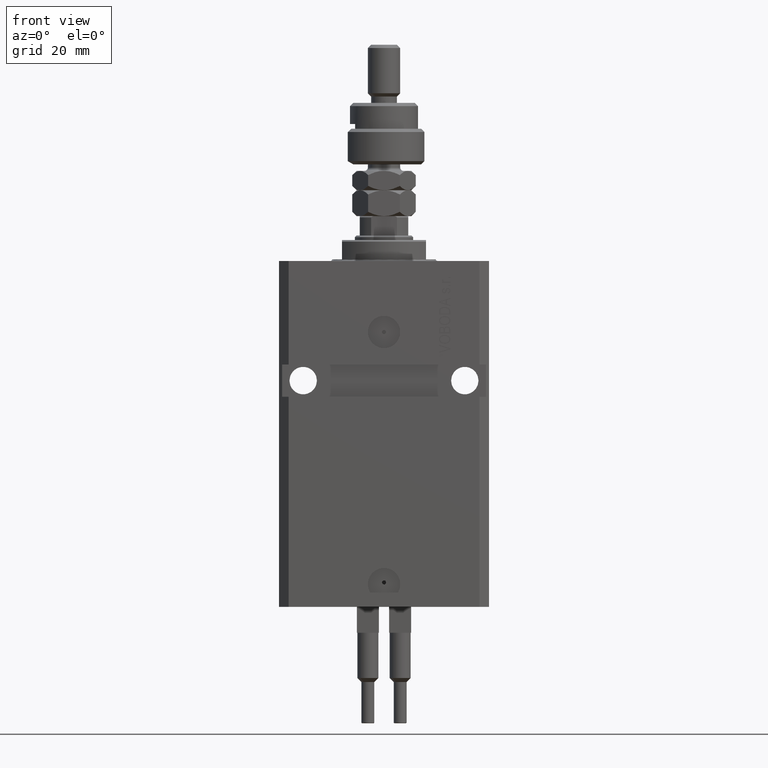
[diagram: clean part render]
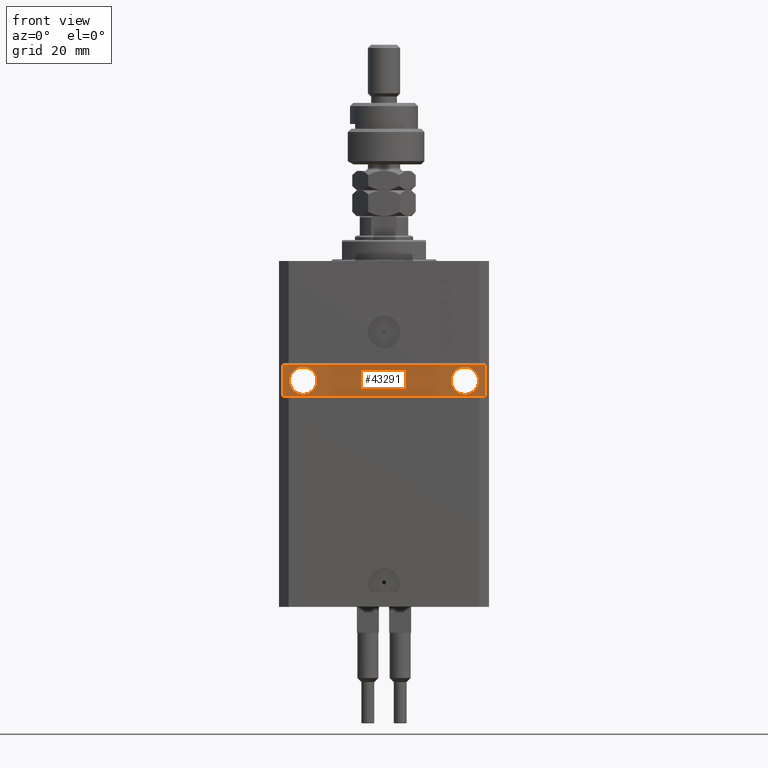
[diagram: same view with one face highlighted and labeled with its STEP entity id]
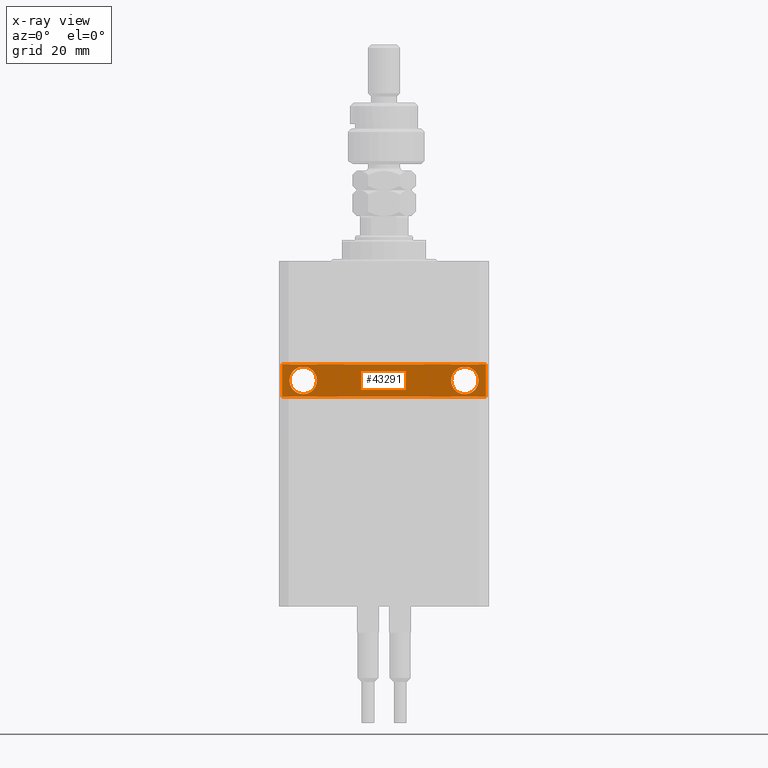
[diagram: x-ray of the same camera — body ghosted, the highlighted face saturated]
A machine part, front view. The second image highlights one B-rep face of the part: STEP entity #43291.
The next image is the same camera in x-ray: the body ghosted, the highlighted face saturated — about 0% of this face is hidden behind the body in this view.
In plain terms, the highlighted planar face has unit normal (0, -1, 0).
Its self-contained STEP definition (entity closure, byte-faithful):
#557 = AXIS2_PLACEMENT_3D ( 'NONE', #17283, #32473, #13202 ) ;
#1029 = VERTEX_POINT ( 'NONE', #38025 ) ;
#1681 = EDGE_CURVE ( 'NONE', #12323, #43668, #42217, .T. ) ;
#1772 = CIRCLE ( 'NONE', #9973, 4.249999999989050536 ) ;
#1875 = LINE ( 'NONE', #2128, #10893 ) ;
#1906 = ORIENTED_EDGE ( 'NONE', *, *, #36547, .F. ) ;
#2128 = CARTESIAN_POINT ( 'NONE',  ( -31.49999999999650413, -20.49999999999950262, -107.0000000000000000 ) ) ;
#2942 = CARTESIAN_POINT ( 'NONE',  ( 32.49999999999650413, -20.49999999999949196, -32.00000000000000711 ) ) ;
#3725 = FACE_BOUND ( 'NONE', #17340, .T. ) ;
#6496 = DIRECTION ( 'NONE',  ( 1.000000000000000000, 1.067522139062765303E-16, 1.067522139062765303E-16 ) ) ;
#7583 = EDGE_LOOP ( 'NONE', ( #34554, #1906, #36125, #18405 ) ) ;
#7700 = VERTEX_POINT ( 'NONE', #29440 ) ;
#7824 = CARTESIAN_POINT ( 'NONE',  ( 2.166708070385810581E-15, -20.49999999999949907, 0.000000000000000000 ) ) ;
#8297 = CIRCLE ( 'NONE', #19764, 4.249999999993782751 ) ;
#8837 = ORIENTED_EDGE ( 'NONE', *, *, #34504, .F. ) ;
#9489 = AXIS2_PLACEMENT_3D ( 'NONE', #7824, #20393, #39680 ) ;
#9640 = VERTEX_POINT ( 'NONE', #26632 ) ;
#9973 = AXIS2_PLACEMENT_3D ( 'NONE', #10404, #26059, #41753 ) ;
#10254 = DIRECTION ( 'NONE',  ( 1.101411730780568590E-16, -1.000000000000000000, 0.000000000000000000 ) ) ;
#10404 = CARTESIAN_POINT ( 'NONE',  ( 25.00000000000000711, -20.49999999999949551, -36.99999999999999289 ) ) ;
#10641 = LINE ( 'NONE', #2942, #27063 ) ;
#10753 = EDGE_CURVE ( 'NONE', #14495, #48345, #10641, .T. ) ;
#10893 = VECTOR ( 'NONE', #45529, 1000.000000000000000 ) ;
#11679 = FACE_BOUND ( 'NONE', #30541, .T. ) ;
#12323 = VERTEX_POINT ( 'NONE', #32812 ) ;
#12695 = PLANE ( 'NONE',  #9489 ) ;
#12834 = CIRCLE ( 'NONE', #557, 4.249999999989050536 ) ;
#13202 = DIRECTION ( 'NONE',  ( 1.000000000000000000, 0.000000000000000000, 0.000000000000000000 ) ) ;
#14495 = VERTEX_POINT ( 'NONE', #42672 ) ;
#15133 = VECTOR ( 'NONE', #21229, 1000.000000000000000 ) ;
#15762 = FACE_OUTER_BOUND ( 'NONE', #7583, .T. ) ;
#15868 = EDGE_CURVE ( 'NONE', #7700, #40795, #8297, .T. ) ;
#17283 = CARTESIAN_POINT ( 'NONE',  ( 25.00000000000000711, -20.49999999999949551, -36.99999999999999289 ) ) ;
#17340 = EDGE_LOOP ( 'NONE', ( #49167, #27313 ) ) ;
#18405 = ORIENTED_EDGE ( 'NONE', *, *, #50829, .F. ) ;
#19764 = AXIS2_PLACEMENT_3D ( 'NONE', #34628, #10254, #50320 ) ;
#20393 = DIRECTION ( 'NONE',  ( 1.067522139062765303E-16, -1.000000000000000000, 0.000000000000000000 ) ) ;
#20799 = DIRECTION ( 'NONE',  ( 1.101411730780568590E-16, -1.000000000000000000, 0.000000000000000000 ) ) ;
#21229 = DIRECTION ( 'NONE',  ( 0.000000000000000000, 0.000000000000000000, -1.000000000000000000 ) ) ;
#22069 = AXIS2_PLACEMENT_3D ( 'NONE', #48311, #20799, #24655 ) ;
#24655 = DIRECTION ( 'NONE',  ( 1.000000000000000000, 0.000000000000000000, 0.000000000000000000 ) ) ;
#26059 = DIRECTION ( 'NONE',  ( 1.394545208792185644E-16, -1.000000000000000000, 1.232595164407830946E-32 ) ) ;
#26455 = EDGE_CURVE ( 'NONE', #40795, #7700, #40976, .T. ) ;
#26632 = CARTESIAN_POINT ( 'NONE',  ( 29.24999999998905764, -20.49999999999949551, -36.99999999999999289 ) ) ;
#27063 = VECTOR ( 'NONE', #41987, 1000.000000000000000 ) ;
#27313 = ORIENTED_EDGE ( 'NONE', *, *, #15868, .F. ) ;
#29440 = CARTESIAN_POINT ( 'NONE',  ( -29.24999999999377920, -20.49999999999950262, -37.00000000000000000 ) ) ;
#30541 = EDGE_LOOP ( 'NONE', ( #8837, #37657 ) ) ;
#31765 = VECTOR ( 'NONE', #6496, 1000.000000000000000 ) ;
#32285 = CARTESIAN_POINT ( 'NONE',  ( 31.49999999999651124, -20.49999999999949551, -107.0000000000000000 ) ) ;
#32473 = DIRECTION ( 'NONE',  ( 1.394545208792185644E-16, -1.000000000000000000, 1.232595164407830946E-32 ) ) ;
#32812 = CARTESIAN_POINT ( 'NONE',  ( -31.49999999999650413, -20.49999999999949907, -41.99999999999999289 ) ) ;
#34272 = CARTESIAN_POINT ( 'NONE',  ( -20.75000000000621014, -20.49999999999950262, -37.00000000000000000 ) ) ;
#34504 = EDGE_CURVE ( 'NONE', #9640, #1029, #1772, .T. ) ;
#34554 = ORIENTED_EDGE ( 'NONE', *, *, #10753, .T. ) ;
#34628 = CARTESIAN_POINT ( 'NONE',  ( -24.99999999999999289, -20.49999999999950262, -37.00000000000000000 ) ) ;
#36125 = ORIENTED_EDGE ( 'NONE', *, *, #1681, .T. ) ;
#36547 = EDGE_CURVE ( 'NONE', #12323, #48345, #1875, .T. ) ;
#37657 = ORIENTED_EDGE ( 'NONE', *, *, #44388, .F. ) ;
#38025 = CARTESIAN_POINT ( 'NONE',  ( 20.75000000001095657, -20.49999999999949551, -36.99999999999999289 ) ) ;
#39680 = DIRECTION ( 'NONE',  ( 1.000000000000000000, 1.067522139062765303E-16, 0.000000000000000000 ) ) ;
#40795 = VERTEX_POINT ( 'NONE', #34272 ) ;
#40976 = CIRCLE ( 'NONE', #22069, 4.249999999993782751 ) ;
#41753 = DIRECTION ( 'NONE',  ( 1.000000000000000000, 0.000000000000000000, 0.000000000000000000 ) ) ;
#41987 = DIRECTION ( 'NONE',  ( -1.000000000000000000, -1.067522139062765303E-16, 1.067522139062765303E-16 ) ) ;
#42217 = LINE ( 'NONE', #49158, #31765 ) ;
#42672 = CARTESIAN_POINT ( 'NONE',  ( 31.49999999999651124, -20.49999999999949196, -32.00000000000000711 ) ) ;
#43291 = ADVANCED_FACE ( 'NONE', ( #11679, #3725, #15762 ), #12695, .T. ) ;
#43480 = CARTESIAN_POINT ( 'NONE',  ( 31.49999999999650413, -20.49999999999949196, -41.99999999999998579 ) ) ;
#43668 = VERTEX_POINT ( 'NONE', #43480 ) ;
#43785 = CARTESIAN_POINT ( 'NONE',  ( -31.49999999999650413, -20.49999999999950262, -32.00000000000000000 ) ) ;
#44388 = EDGE_CURVE ( 'NONE', #1029, #9640, #12834, .T. ) ;
#44631 = LINE ( 'NONE', #32285, #15133 ) ;
#45529 = DIRECTION ( 'NONE',  ( 0.000000000000000000, 0.000000000000000000, 1.000000000000000000 ) ) ;
#48311 = CARTESIAN_POINT ( 'NONE',  ( -24.99999999999999289, -20.49999999999950262, -37.00000000000000000 ) ) ;
#48345 = VERTEX_POINT ( 'NONE', #43785 ) ;
#49158 = CARTESIAN_POINT ( 'NONE',  ( -32.49999999999650413, -20.49999999999949907, -41.99999999999999289 ) ) ;
#49167 = ORIENTED_EDGE ( 'NONE', *, *, #26455, .F. ) ;
#50320 = DIRECTION ( 'NONE',  ( 1.000000000000000000, 0.000000000000000000, 0.000000000000000000 ) ) ;
#50829 = EDGE_CURVE ( 'NONE', #14495, #43668, #44631, .T. ) ;